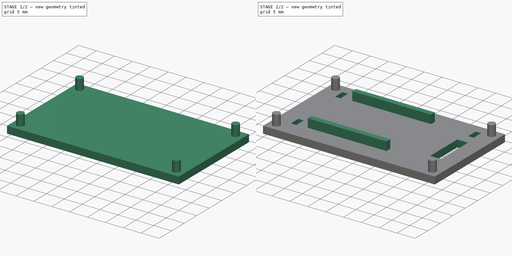
[diagram: build sequence overview — one tinted view per stage of 2, left to right]
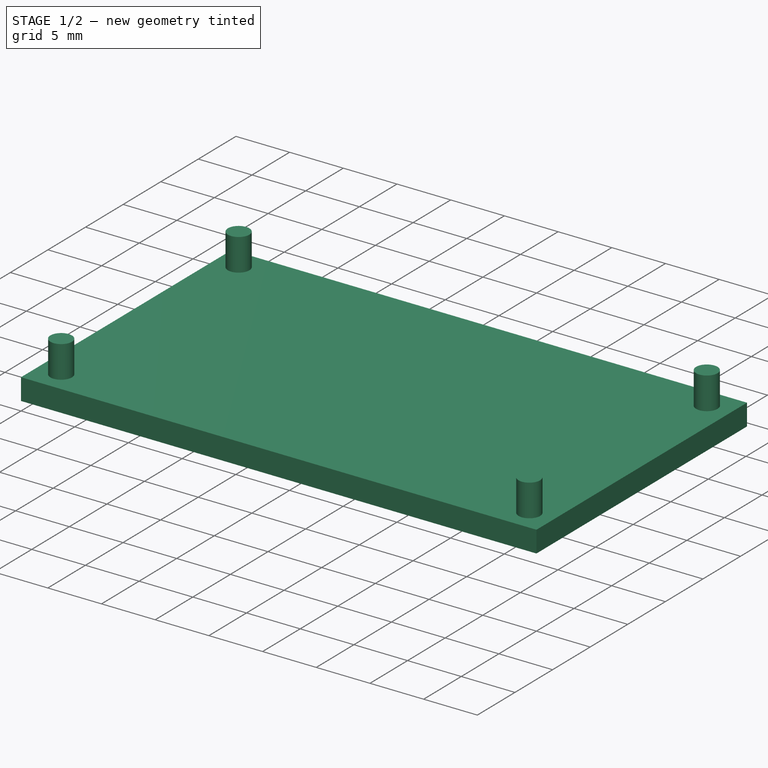
[diagram: stage 1 of 2 — iso view after this stage's code; geometry added in this stage tinted green]
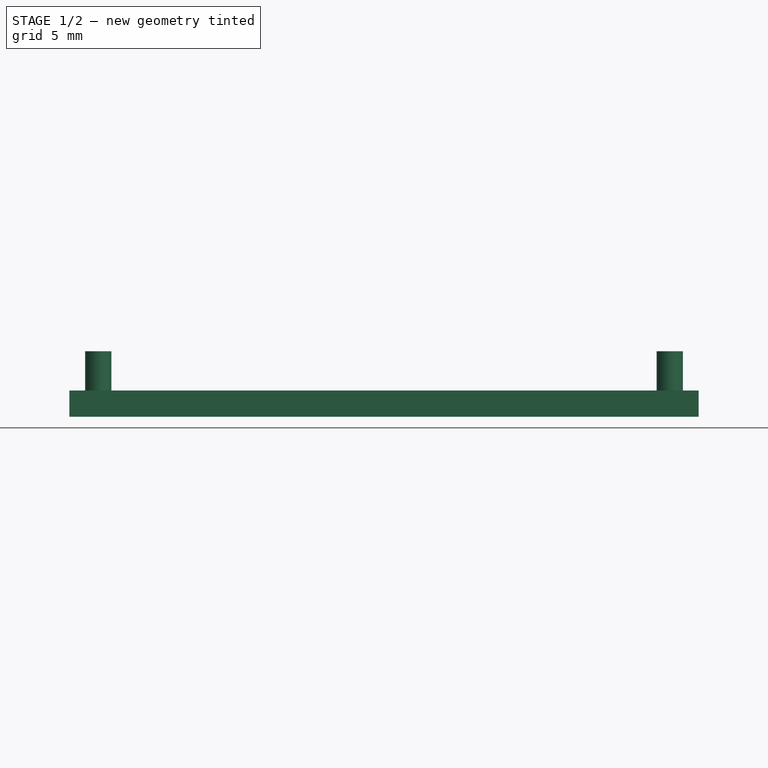
[diagram: stage 1 of 2 — front view after this stage's code; geometry added in this stage tinted green]
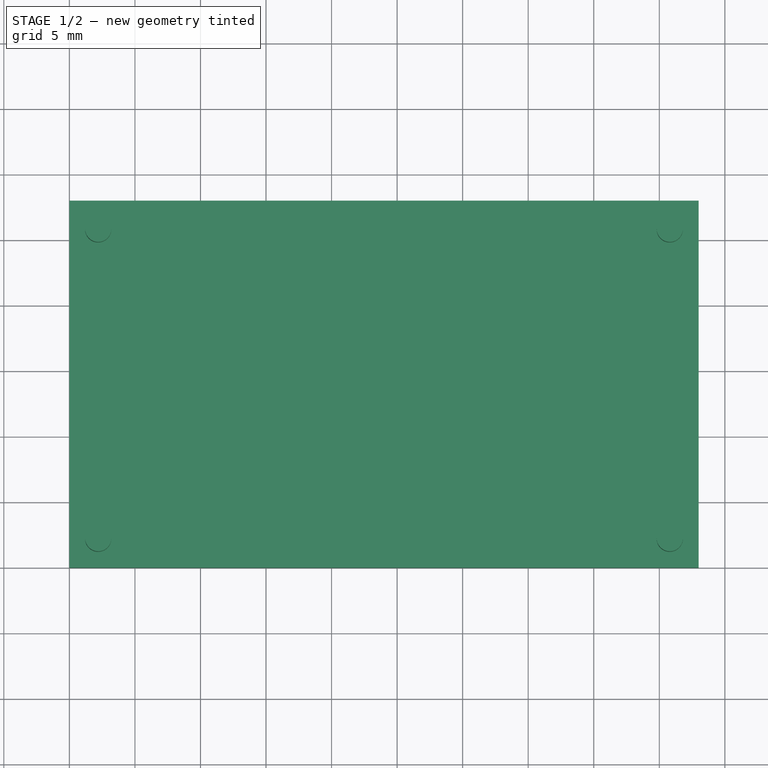
[diagram: stage 1 of 2 — top view after this stage's code; geometry added in this stage tinted green]
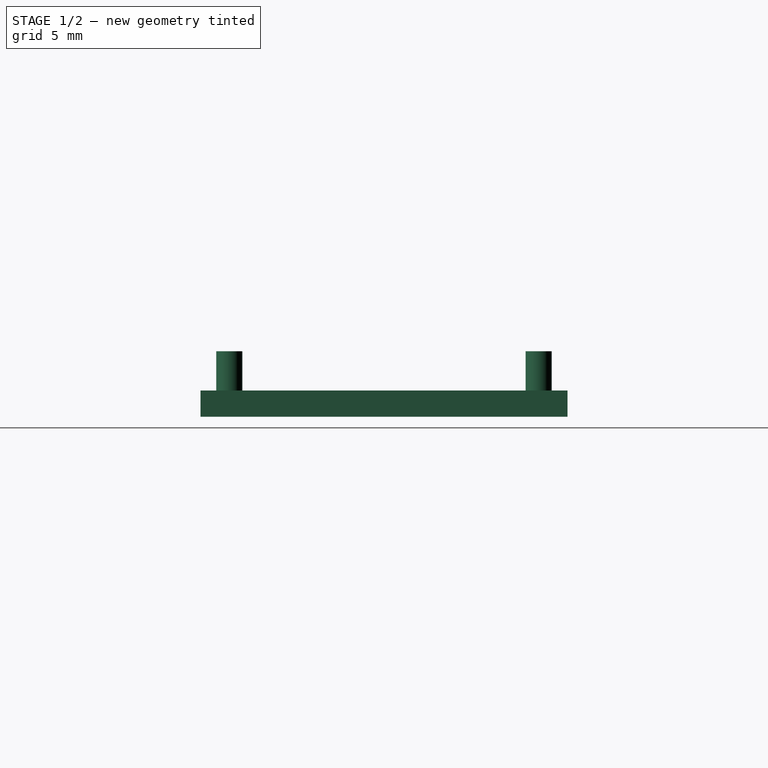
[diagram: stage 1 of 2 — right view after this stage's code; geometry added in this stage tinted green]
FCSTD DOCUMENT  (FreeCAD 0.16R6109 (Git))
Label: cover2
License: All rights reserved
LicenseURL: http://en.wikipedia.org/wiki/All_rights_reserved
objects: Sketcher::SketchObject×4, PartDesign::Pad×3, PartDesign::Pocket×1
note: 12 computed .brp shape members not serialized (recipe doc carries the construction recipe); baked Part::Feature solids carry a one-line shape summary decoded from their .brp

FEATURE [Sketcher::SketchObject] Sketch
  sketch-geometry (4):
    g0: LineSegment StartX=0 StartY=0 StartZ=0 EndX=48 EndY=0 EndZ=0
    g1: LineSegment StartX=48 StartY=0 StartZ=0 EndX=48 EndY=28 EndZ=0
    g2: LineSegment StartX=48 StartY=28 StartZ=0 EndX=0 EndY=28 EndZ=0
    g3: LineSegment StartX=0 StartY=28 StartZ=0 EndX=0 EndY=0 EndZ=0
  constraints (11):
    c: Coincident(g0,g1)
    c: Coincident(g1,g2)
    c: Coincident(g2,g3)
    c: Coincident(g3,g0)
    c: Horizontal(g0)
    c: Horizontal(g2)
    c: Vertical(g1)
    c: Vertical(g3)
    c: Coincident(g0,g-1)
    c: DistanceX(g0) = 48
    c: DistanceY(g3) = -28
FEATURE [PartDesign::Pad] Pad
  Length = 2
  Length2 = 100
  Sketch = -> Sketch
  Type = 0
FEATURE [Sketcher::SketchObject] Sketch001
  Placement = pos=(0,0,2) rot=(0,0,1;0rad)
  Support = -> Pad [Face6]
  sketch-geometry (4):
    g0: Circle CenterX=2.2 CenterY=2.2 CenterZ=0 NormalX=0 NormalY=0 NormalZ=1 Radius=1
    g1: Circle CenterX=2.2 CenterY=25.8 CenterZ=0 NormalX=0 NormalY=0 NormalZ=1 Radius=1
    g2: Circle CenterX=45.8 CenterY=25.8 CenterZ=0 NormalX=0 NormalY=0 NormalZ=1 Radius=1
    g3: Circle CenterX=45.8 CenterY=2.2 CenterZ=0 NormalX=0 NormalY=0 NormalZ=1 Radius=1
  constraints (12):
    c: Radius(g0) = 1
    c: Radius(g1) = 1
    c: Radius(g2) = 1
    c: Radius(g3) = 1
    c: DistanceY(g3,g0) = 0
    c: DistanceX(g0,g1) = 0
    c: DistanceY(g1,g2) = 0
    c: DistanceY(g0) = 2.2
    c: DistanceY(g1) = 25.8
    c: DistanceX(g3) = 45.8
    c: DistanceX(g2,g3) = 0
    c: DistanceX(g0) = 2.2
FEATURE [PartDesign::Pad] Pad001
  Length = 3
  Length2 = 100
  Sketch = -> Sketch001
  Type = 0
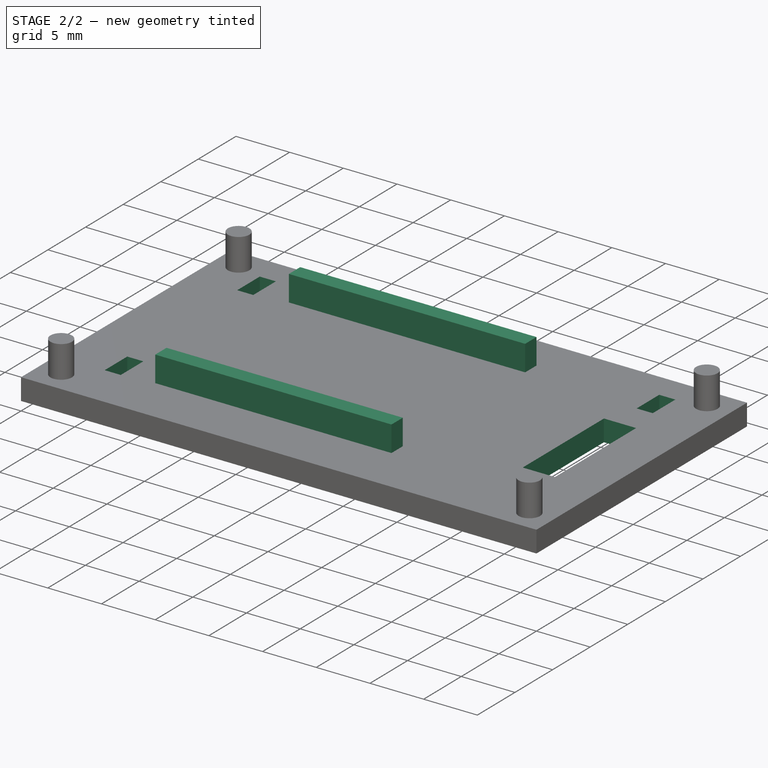
[diagram: stage 2 of 2 — iso view after this stage's code; geometry added in this stage tinted green]
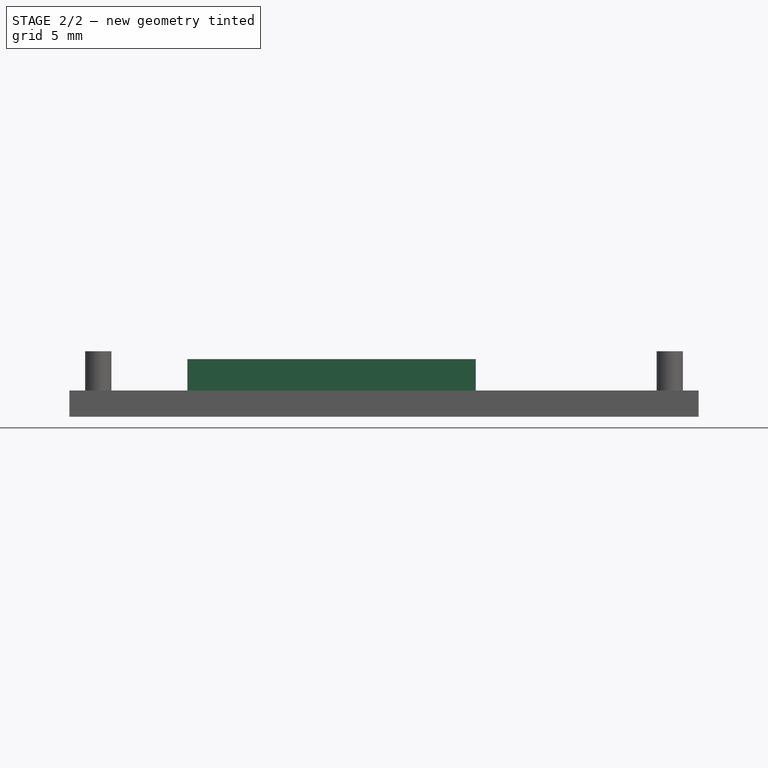
[diagram: stage 2 of 2 — front view after this stage's code; geometry added in this stage tinted green]
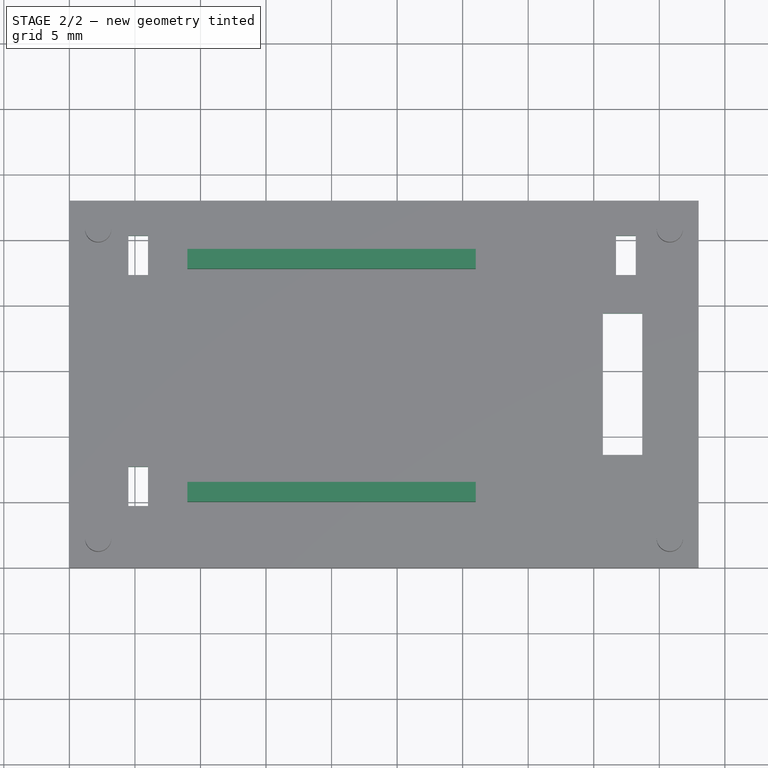
[diagram: stage 2 of 2 — top view after this stage's code; geometry added in this stage tinted green]
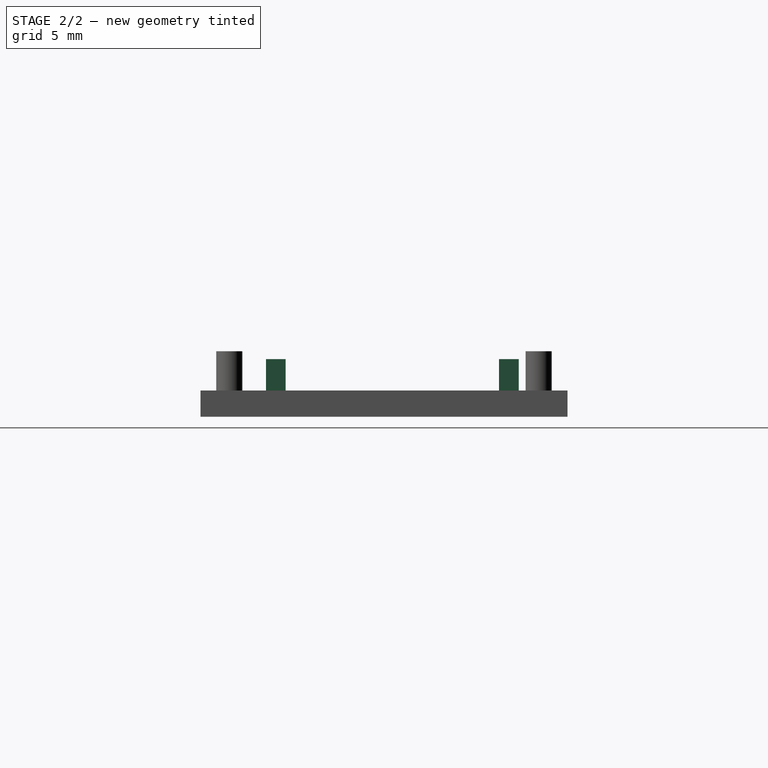
[diagram: stage 2 of 2 — right view after this stage's code; geometry added in this stage tinted green]
FEATURE [Sketcher::SketchObject] Sketch003
  Placement = pos=(0,0,0) rot=(1,0,0;3.14159rad)
  Support = -> Pad001 [Face4]
  sketch-geometry (16):
    g0: LineSegment StartX=4.5 StartY=-4.7 StartZ=0 EndX=6 EndY=-4.7 EndZ=0
    g1: LineSegment StartX=6 StartY=-4.7 StartZ=0 EndX=6 EndY=-7.7 EndZ=0
    g2: LineSegment StartX=6 StartY=-7.7 StartZ=0 EndX=4.5 EndY=-7.7 EndZ=0
    g3: LineSegment StartX=4.5 StartY=-7.7 StartZ=0 EndX=4.5 EndY=-4.7 EndZ=0
    g4: LineSegment StartX=4.5 StartY=-22.3239 StartZ=0 EndX=6 EndY=-22.3239 EndZ=0
    g5: LineSegment StartX=6 StartY=-22.3239 StartZ=0 EndX=6 EndY=-25.3239 EndZ=0
    g6: LineSegment StartX=6 StartY=-25.3239 StartZ=0 EndX=4.5 EndY=-25.3239 EndZ=0
    g7: LineSegment StartX=4.5 StartY=-25.3239 StartZ=0 EndX=4.5 EndY=-22.3239 EndZ=0
    g8: LineSegment StartX=41.7 StartY=-22.3239 StartZ=0 EndX=43.2 EndY=-22.3239 EndZ=0
    g9: LineSegment StartX=43.2 StartY=-22.3239 StartZ=0 EndX=43.2 EndY=-25.3239 EndZ=0
    g10: LineSegment StartX=43.2 StartY=-25.3239 StartZ=0 EndX=41.7 EndY=-25.3239 EndZ=0
    g11: LineSegment StartX=41.7 StartY=-25.3239 StartZ=0 EndX=41.7 EndY=-22.3239 EndZ=0
    g12: LineSegment StartX=43.7 StartY=-8.6 StartZ=0 EndX=40.7 EndY=-8.6 EndZ=0
    g13: LineSegment StartX=40.7 StartY=-8.6 StartZ=0 EndX=40.7 EndY=-19.4 EndZ=0
    g14: LineSegment StartX=40.7 StartY=-19.4 StartZ=0 EndX=43.7 EndY=-19.4 EndZ=0
    g15: LineSegment StartX=43.7 StartY=-19.4 StartZ=0 EndX=43.7 EndY=-8.6 EndZ=0
  constraints (47):
    c: Coincident(g0,g1)
    c: Coincident(g1,g2)
    c: Coincident(g2,g3)
    c: Coincident(g3,g0)
    c: Horizontal(g0)
    c: Horizontal(g2)
    c: Vertical(g1)
    c: Vertical(g3)
    c: DistanceY(g1) = -3
    c: DistanceX(g0) = 1.5
    c: DistanceY(g-1,g0) = -4.7
    c: Coincident(g4,g5)
    c: Coincident(g5,g6)
    c: Coincident(g6,g7)
    c: Coincident(g7,g4)
    c: Horizontal(g4)
    c: Horizontal(g6)
    c: Vertical(g5)
    c: Vertical(g7)
    c: Equal(g7,g3)
    c: Equal(g2,g4)
    c: DistanceX(g2,g4) = 0
    c: DistanceX(g0) = 4.5
    c: Coincident(g8,g9)
    c: Coincident(g9,g10)
    c: Coincident(g10,g11)
    c: Coincident(g11,g8)
    c: Horizontal(g8)
    c: Horizontal(g10)
    c: Vertical(g9)
    c: Vertical(g11)
    c: Equal(g11,g3)
    c: Equal(g8,g2)
    c: DistanceY(g8,g4) = 0
    c: DistanceX(g4,g8) = 35.7
    c: Coincident(g12,g13)
    c: Coincident(g13,g14)
    c: Coincident(g14,g15)
    c: Coincident(g15,g12)
    c: Horizontal(g12)
    c: Horizontal(g14)
    c: Vertical(g13)
    c: Vertical(g15)
    c: DistanceY(g12) = -8.6
    c: DistanceY(g13) = -10.8
    c: DistanceX(g12) = 40.7
    c: DistanceX(g12) = -3
FEATURE [PartDesign::Pocket] Pocket
  Length = 5
  Sketch = -> Sketch003
  Type = 1
FEATURE [Sketcher::SketchObject] Sketch004
  Placement = pos=(0,0,2) rot=(0,0,1;0rad)
  Support = -> Pocket [Face5]
  sketch-geometry (8):
    g0: LineSegment StartX=9 StartY=5 StartZ=0 EndX=31 EndY=5 EndZ=0
    g1: LineSegment StartX=31 StartY=5 StartZ=0 EndX=31 EndY=6.5 EndZ=0
    g2: LineSegment StartX=31 StartY=6.5 StartZ=0 EndX=9 EndY=6.5 EndZ=0
    g3: LineSegment StartX=9 StartY=6.5 StartZ=0 EndX=9 EndY=5 EndZ=0
    g4: LineSegment StartX=9 StartY=24.2762 StartZ=0 EndX=31 EndY=24.2762 EndZ=0
    g5: LineSegment StartX=31 StartY=24.2762 StartZ=0 EndX=31 EndY=22.7762 EndZ=0
    g6: LineSegment StartX=31 StartY=22.7762 StartZ=0 EndX=9 EndY=22.7762 EndZ=0
    g7: LineSegment StartX=9 StartY=22.7762 StartZ=0 EndX=9 EndY=24.2762 EndZ=0
  constraints (23):
    c: Coincident(g0,g1)
    c: Coincident(g1,g2)
    c: Coincident(g2,g3)
    c: Coincident(g3,g0)
    c: Horizontal(g0)
    c: Horizontal(g2)
    c: Vertical(g1)
    c: Vertical(g3)
    c: DistanceX(g-1,g0) = 9
    c: DistanceX(g2) = -22
    c: Coincident(g4,g5)
    c: Coincident(g5,g6)
    c: Coincident(g6,g7)
    c: Coincident(g7,g4)
    c: Horizontal(g4)
    c: Horizontal(g6)
    c: Vertical(g5)
    c: Vertical(g7)
    c: Equal(g3,g7)
    c: Equal(g6,g2)
    c: DistanceX(g6,g2) = 0
    c: DistanceY(g0,g1) = 1.5
    c: DistanceY(g-1,g0) = 5
FEATURE [PartDesign::Pad] Pad002
  Length = 2.4
  Length2 = 100
  Sketch = -> Sketch004
  Type = 0
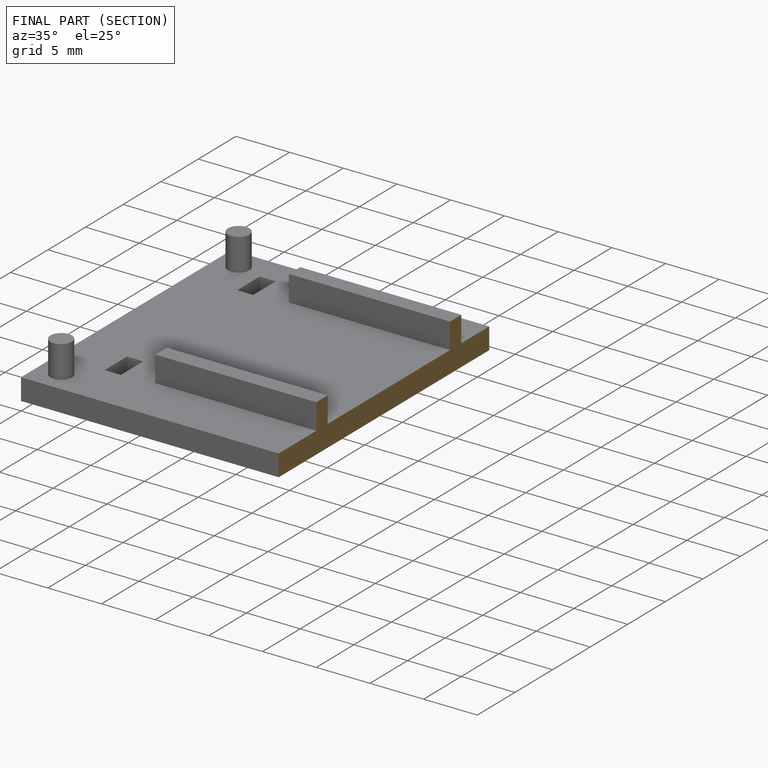
[diagram: finished part — half-section view (interior)]
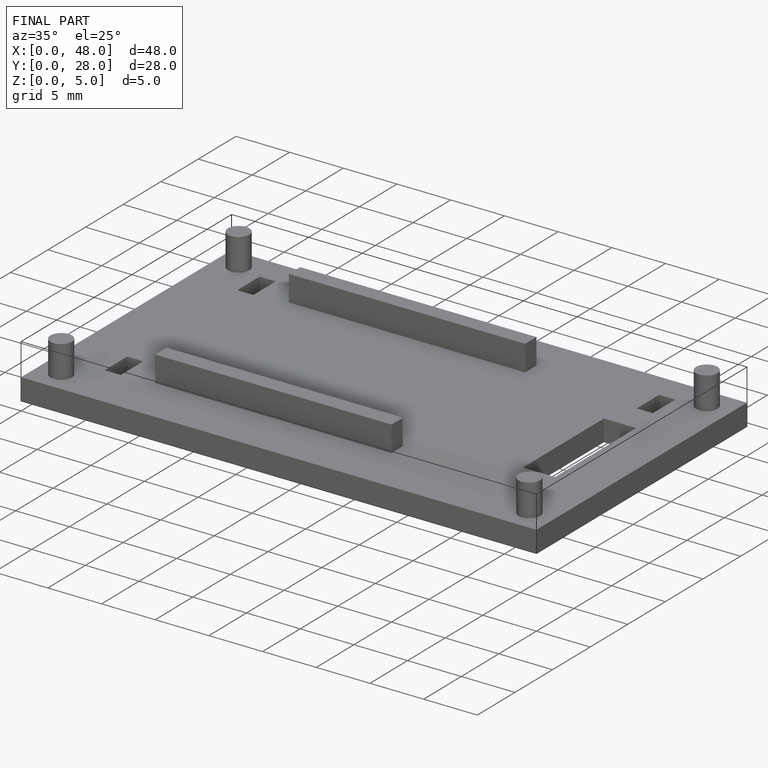
[diagram: finished part — iso view with bounding-box wireframe]
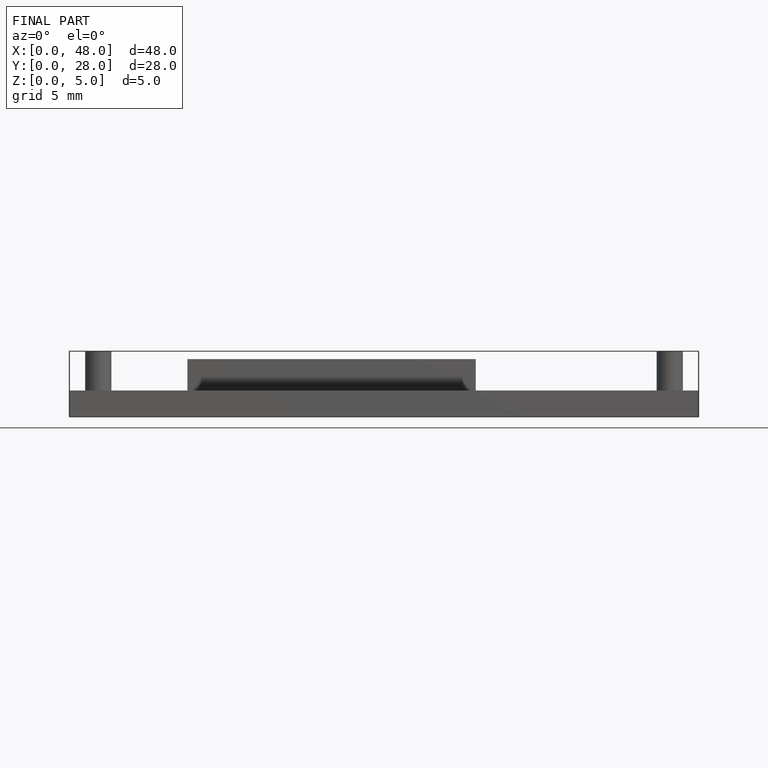
[diagram: finished part — front view with bounding-box wireframe]
